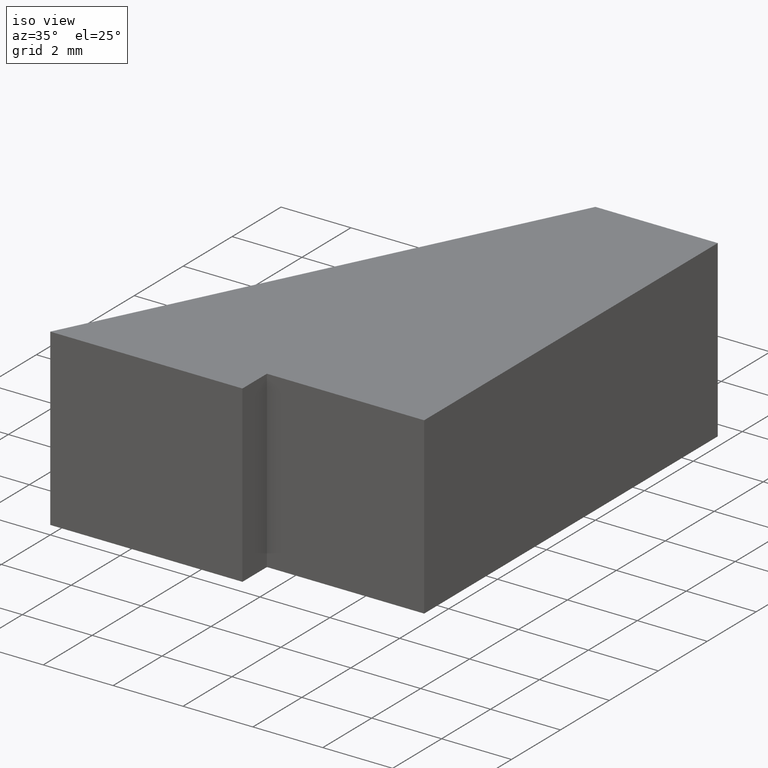
[diagram: clean part render]
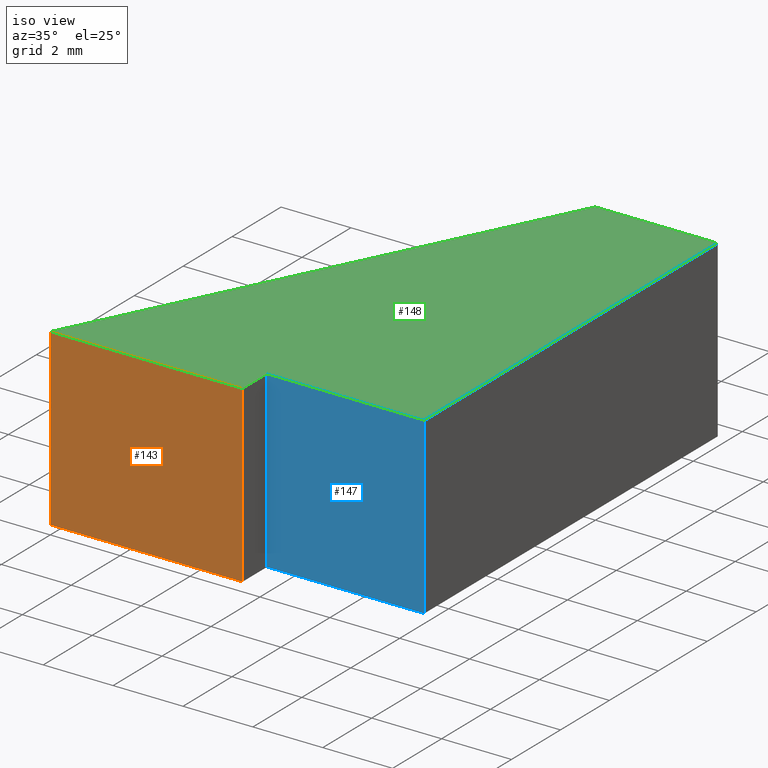
[diagram: same view with three faces highlighted in distinct colors, each labeled with its STEP entity id]
A machine part, iso view with three faces highlighted in distinct colors.
Their STEP definitions:

[orange] entity #143 — the highlighted planar face has unit normal (0, -1, 0).
#17=FACE_OUTER_BOUND('',#25,.T.);
#25=EDGE_LOOP('',(#107,#108,#109,#110));
#34=LINE('',#226,#52);
#38=LINE('',#234,#56);
#40=LINE('',#238,#58);
#41=LINE('',#239,#59);
#52=VECTOR('',#187,10.);
#56=VECTOR('',#193,10.);
#58=VECTOR('',#197,10.);
#59=VECTOR('',#198,10.);
#70=VERTEX_POINT('',#223);
#71=VERTEX_POINT('',#225);
#74=VERTEX_POINT('',#232);
#75=VERTEX_POINT('',#237);
#82=EDGE_CURVE('',#71,#70,#34,.T.);
#86=EDGE_CURVE('',#74,#70,#38,.T.);
#88=EDGE_CURVE('',#74,#75,#40,.T.);
#89=EDGE_CURVE('',#75,#71,#41,.T.);
#107=ORIENTED_EDGE('',*,*,#88,.T.);
#108=ORIENTED_EDGE('',*,*,#89,.T.);
#109=ORIENTED_EDGE('',*,*,#82,.T.);
#110=ORIENTED_EDGE('',*,*,#86,.F.);
#135=PLANE('',#174);
#143=ADVANCED_FACE('',(#17),#135,.T.);
#174=AXIS2_PLACEMENT_3D('',#236,#195,#196);
#187=DIRECTION('',(1.,1.22464679914735E-16,0.));
#193=DIRECTION('',(0.,0.,-1.));
#195=DIRECTION('center_axis',(1.22464679914735E-16,-1.,0.));
#196=DIRECTION('ref_axis',(0.,0.,-1.));
#197=DIRECTION('',(-1.,-1.22464679914735E-16,0.));
#198=DIRECTION('',(0.,0.,-1.));
#223=CARTESIAN_POINT('',(-4.49999999999999,1.96034875673415E-15,-2.5));
#225=CARTESIAN_POINT('',(-10.,1.2867930172031E-15,-2.5));
#226=CARTESIAN_POINT('',(-4.49999999999999,1.96034875673415E-15,-2.5));
#232=CARTESIAN_POINT('',(-4.49999999999999,1.96034875673415E-15,2.5));
#234=CARTESIAN_POINT('',(-4.49999999999999,1.96034875673415E-15,0.));
#236=CARTESIAN_POINT('Origin',(-4.49999999999999,1.96034875673415E-15,0.));
#237=CARTESIAN_POINT('',(-10.,1.2867930172031E-15,2.5));
#238=CARTESIAN_POINT('',(-4.49999999999999,1.96034875673415E-15,2.5));
#239=CARTESIAN_POINT('',(-10.,1.2867930172031E-15,0.));

[blue] entity #147 — the highlighted planar face has unit normal (-0, -1, 0).
#21=FACE_OUTER_BOUND('',#29,.T.);
#29=EDGE_LOOP('',(#123,#124,#125,#126));
#32=LINE('',#222,#50);
#39=LINE('',#235,#57);
#47=LINE('',#251,#65);
#48=LINE('',#253,#66);
#50=VECTOR('',#185,10.);
#57=VECTOR('',#194,10.);
#65=VECTOR('',#210,10.);
#66=VECTOR('',#213,10.);
#67=VERTEX_POINT('',#218);
#69=VERTEX_POINT('',#221);
#73=VERTEX_POINT('',#231);
#78=VERTEX_POINT('',#249);
#80=EDGE_CURVE('',#69,#67,#32,.T.);
#87=EDGE_CURVE('',#73,#69,#39,.T.);
#95=EDGE_CURVE('',#67,#78,#47,.T.);
#96=EDGE_CURVE('',#78,#73,#48,.T.);
#123=ORIENTED_EDGE('',*,*,#96,.T.);
#124=ORIENTED_EDGE('',*,*,#87,.T.);
#125=ORIENTED_EDGE('',*,*,#80,.T.);
#126=ORIENTED_EDGE('',*,*,#95,.T.);
#139=PLANE('',#178);
#147=ADVANCED_FACE('',(#21),#139,.T.);
#178=AXIS2_PLACEMENT_3D('',#252,#211,#212);
#185=DIRECTION('',(1.,-1.2335811384724E-15,0.));
#194=DIRECTION('',(0.,0.,-1.));
#210=DIRECTION('',(0.,0.,1.));
#211=DIRECTION('center_axis',(-1.2335811384724E-15,-1.,0.));
#212=DIRECTION('ref_axis',(0.,0.,-1.));
#213=DIRECTION('',(-1.,1.2335811384724E-15,0.));
#218=CARTESIAN_POINT('',(-3.80554434091013E-15,0.999999999999996,-2.5));
#221=CARTESIAN_POINT('',(-4.49999999999999,1.,-2.5));
#222=CARTESIAN_POINT('',(-3.80554434091013E-15,0.999999999999996,-2.5));
#231=CARTESIAN_POINT('',(-4.49999999999999,1.,2.5));
#235=CARTESIAN_POINT('',(-4.49999999999999,1.,0.));
#249=CARTESIAN_POINT('',(-3.80554434091013E-15,0.999999999999996,2.5));
#251=CARTESIAN_POINT('',(-3.80554434091013E-15,0.999999999999996,0.));
#252=CARTESIAN_POINT('Origin',(-3.80554434091013E-15,0.999999999999996,
0.));
#253=CARTESIAN_POINT('',(-3.80554434091013E-15,0.999999999999996,2.5));

[green] entity #148 — the highlighted planar face has unit normal (0, 0, 1).
#22=FACE_OUTER_BOUND('',#30,.T.);
#30=EDGE_LOOP('',(#127,#128,#129,#130,#131,#132));
#37=LINE('',#233,#55);
#40=LINE('',#238,#58);
#42=LINE('',#242,#60);
#44=LINE('',#246,#62);
#46=LINE('',#250,#64);
#48=LINE('',#253,#66);
#55=VECTOR('',#192,10.);
#58=VECTOR('',#197,10.);
#60=VECTOR('',#201,10.);
#62=VECTOR('',#205,10.);
#64=VECTOR('',#209,10.);
#66=VECTOR('',#213,10.);
#73=VERTEX_POINT('',#231);
#74=VERTEX_POINT('',#232);
#75=VERTEX_POINT('',#237);
#76=VERTEX_POINT('',#241);
#77=VERTEX_POINT('',#245);
#78=VERTEX_POINT('',#249);
#85=EDGE_CURVE('',#73,#74,#37,.T.);
#88=EDGE_CURVE('',#74,#75,#40,.T.);
#90=EDGE_CURVE('',#75,#76,#42,.T.);
#92=EDGE_CURVE('',#76,#77,#44,.T.);
#94=EDGE_CURVE('',#77,#78,#46,.T.);
#96=EDGE_CURVE('',#78,#73,#48,.T.);
#127=ORIENTED_EDGE('',*,*,#85,.F.);
#128=ORIENTED_EDGE('',*,*,#96,.F.);
#129=ORIENTED_EDGE('',*,*,#94,.F.);
#130=ORIENTED_EDGE('',*,*,#92,.F.);
#131=ORIENTED_EDGE('',*,*,#90,.F.);
#132=ORIENTED_EDGE('',*,*,#88,.F.);
#140=PLANE('',#179);
#148=ADVANCED_FACE('',(#22),#140,.T.);
#179=AXIS2_PLACEMENT_3D('',#254,#214,#215);
#192=DIRECTION('',(0.,-1.,0.));
#197=DIRECTION('',(-1.,-1.22464679914735E-16,0.));
#201=DIRECTION('',(0.447213595499958,0.894427190999916,0.));
#205=DIRECTION('',(1.,6.34413156928661E-16,0.));
#209=DIRECTION('',(-3.17128695075844E-16,-1.,0.));
#213=DIRECTION('',(-1.,1.2335811384724E-15,0.));
#214=DIRECTION('center_axis',(0.,0.,1.));
#215=DIRECTION('ref_axis',(1.,0.,0.));
#231=CARTESIAN_POINT('',(-4.49999999999999,1.,2.5));
#232=CARTESIAN_POINT('',(-4.49999999999999,1.96034875673415E-15,2.5));
#233=CARTESIAN_POINT('',(-4.49999999999999,1.,2.5));
#237=CARTESIAN_POINT('',(-10.,1.2867930172031E-15,2.5));
#238=CARTESIAN_POINT('',(-4.49999999999999,1.96034875673415E-15,2.5));
#241=CARTESIAN_POINT('',(-3.5,13.,2.5));
#242=CARTESIAN_POINT('',(-10.,1.2867930172031E-15,2.5));
#245=CARTESIAN_POINT('',(0.,13.,2.5));
#246=CARTESIAN_POINT('',(-3.5,13.,2.5));
#249=CARTESIAN_POINT('',(-3.80554434091013E-15,0.999999999999996,2.5));
#250=CARTESIAN_POINT('',(0.,13.,2.5));
#253=CARTESIAN_POINT('',(-3.80554434091013E-15,0.999999999999996,2.5));
#254=CARTESIAN_POINT('Origin',(-3.86827443830097,5.58004109975359,2.5));